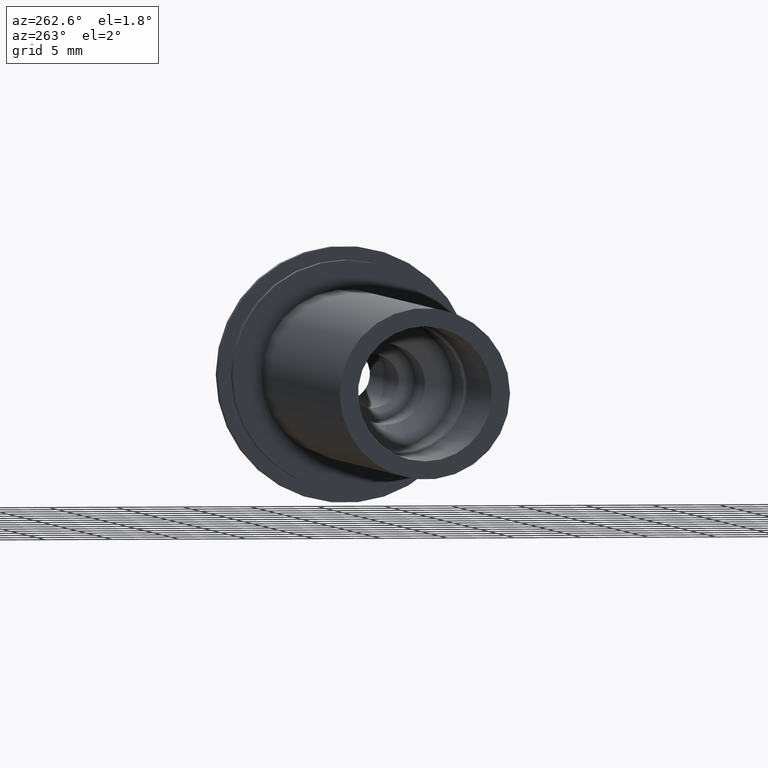
[diagram: clean part render]
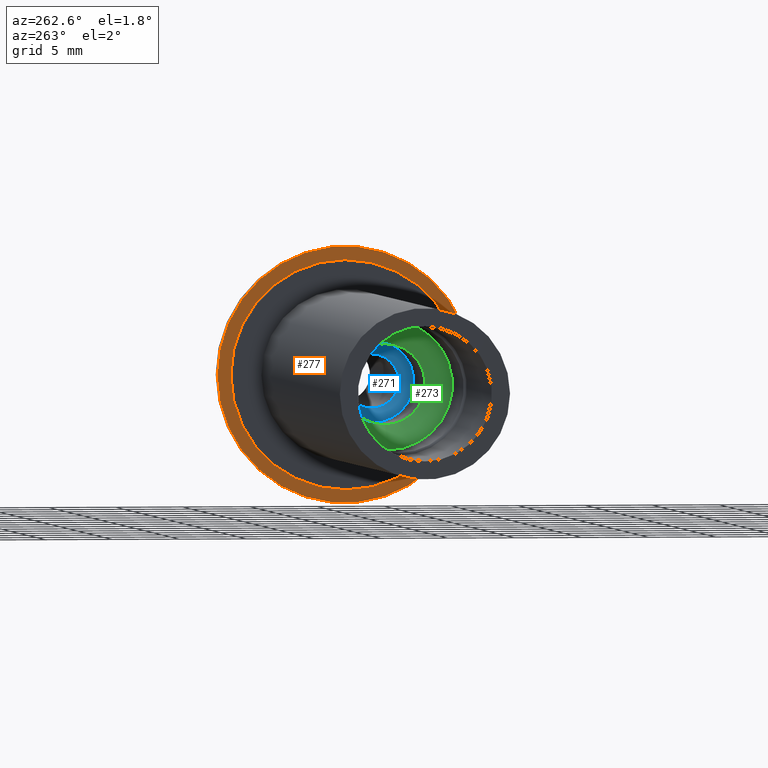
[diagram: same view with three faces highlighted in distinct colors, each labeled with its STEP entity id]
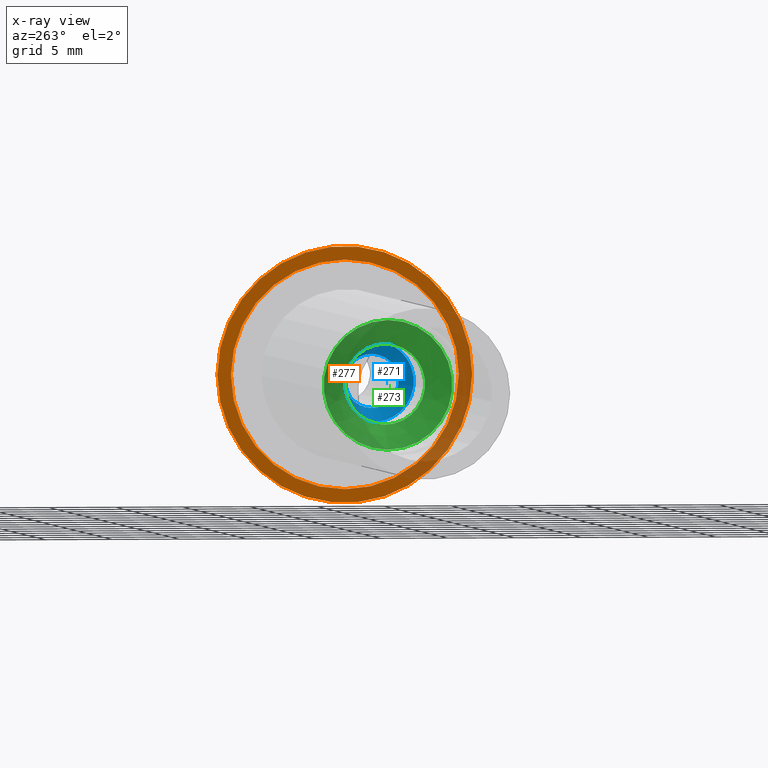
[diagram: x-ray of the same camera — body ghosted, the three highlighted faces saturated]
A machine part, auxiliary view with three faces highlighted in distinct colors.
The next image is the same camera in x-ray (body ghosted, the three faces saturated) — at least one of them is partly hidden behind the body in this view.
Their STEP definitions:

[orange] entity #277 — the highlighted planar face has unit normal (-1, 0, 0).
#91=FACE_BOUND('',#124,.T.);
#95=PLANE('',#323);
#109=FACE_OUTER_BOUND('',#123,.T.);
#123=EDGE_LOOP('',(#243));
#124=EDGE_LOOP('',(#244));
#163=CIRCLE('',#324,9.5);
#164=CIRCLE('',#325,8.5);
#182=VERTEX_POINT('',#491);
#183=VERTEX_POINT('',#493);
#204=EDGE_CURVE('',#182,#182,#163,.T.);
#205=EDGE_CURVE('',#183,#183,#164,.T.);
#243=ORIENTED_EDGE('',*,*,#204,.F.);
#244=ORIENTED_EDGE('',*,*,#205,.T.);
#277=ADVANCED_FACE('',(#109,#91),#95,.T.);
#323=AXIS2_PLACEMENT_3D('',#490,#394,#395);
#324=AXIS2_PLACEMENT_3D('',#492,#396,#397);
#325=AXIS2_PLACEMENT_3D('',#494,#398,#399);
#394=DIRECTION('center_axis',(-1.,0.,0.));
#395=DIRECTION('ref_axis',(0.,0.,1.));
#396=DIRECTION('center_axis',(1.,0.,0.));
#397=DIRECTION('ref_axis',(0.,0.,-1.));
#398=DIRECTION('center_axis',(1.,0.,0.));
#399=DIRECTION('ref_axis',(0.,0.,-1.));
#490=CARTESIAN_POINT('Origin',(-0.999999999999994,9.5,0.));
#491=CARTESIAN_POINT('',(-0.999999999999994,-9.5,-1.16341445918999E-15));
#492=CARTESIAN_POINT('Origin',(-0.999999999999994,0.,0.));
#493=CARTESIAN_POINT('',(-0.999999999999994,-8.5,-1.04094977927525E-15));
#494=CARTESIAN_POINT('Origin',(-0.999999999999994,0.,0.));

[blue] entity #271 — the highlighted conical surface has half-angle 45 deg.
#99=CONICAL_SURFACE('',#311,1.5,0.785398163397448);
#103=FACE_OUTER_BOUND('',#117,.T.);
#117=EDGE_LOOP('',(#218,#219,#220,#221,#222));
#135=LINE('',#469,#145);
#145=VECTOR('',#368,1.5);
#155=CIRCLE('',#309,2.);
#156=CIRCLE('',#310,2.);
#157=CIRCLE('',#312,3.);
#174=VERTEX_POINT('',#461);
#175=VERTEX_POINT('',#463);
#176=VERTEX_POINT('',#467);
#190=EDGE_CURVE('',#175,#174,#155,.T.);
#191=EDGE_CURVE('',#174,#175,#156,.T.);
#192=EDGE_CURVE('',#176,#176,#157,.T.);
#193=EDGE_CURVE('',#176,#175,#135,.T.);
#218=ORIENTED_EDGE('',*,*,#192,.T.);
#219=ORIENTED_EDGE('',*,*,#193,.T.);
#220=ORIENTED_EDGE('',*,*,#190,.T.);
#221=ORIENTED_EDGE('',*,*,#191,.T.);
#222=ORIENTED_EDGE('',*,*,#193,.F.);
#271=ADVANCED_FACE('',(#103),#99,.F.);
#309=AXIS2_PLACEMENT_3D('',#464,#360,#361);
#310=AXIS2_PLACEMENT_3D('',#465,#362,#363);
#311=AXIS2_PLACEMENT_3D('',#466,#364,#365);
#312=AXIS2_PLACEMENT_3D('',#468,#366,#367);
#360=DIRECTION('center_axis',(1.,0.,0.));
#361=DIRECTION('ref_axis',(0.,0.,-1.));
#362=DIRECTION('center_axis',(1.,0.,0.));
#363=DIRECTION('ref_axis',(0.,0.,-1.));
#364=DIRECTION('center_axis',(-1.,0.,0.));
#365=DIRECTION('ref_axis',(0.,0.,1.));
#366=DIRECTION('center_axis',(-1.,0.,0.));
#367=DIRECTION('ref_axis',(0.,0.,1.));
#368=DIRECTION('',(0.707106781186548,8.65956056235493E-17,0.707106781186547));
#461=CARTESIAN_POINT('',(-16.5,-2.44929359829471E-16,2.));
#463=CARTESIAN_POINT('',(-16.5,-2.44929359829471E-16,-2.));
#464=CARTESIAN_POINT('Origin',(-16.5,0.,0.));
#465=CARTESIAN_POINT('Origin',(-16.5,0.,0.));
#466=CARTESIAN_POINT('Origin',(-16.,0.,0.));
#467=CARTESIAN_POINT('',(-17.5,-3.67394039744206E-16,-3.));
#468=CARTESIAN_POINT('Origin',(-17.5,0.,0.));
#469=CARTESIAN_POINT('',(-16.,-1.83697019872103E-16,-1.5));

[green] entity #273 — the highlighted conical surface has half-angle 45 deg.
#100=CONICAL_SURFACE('',#315,2.4,0.785398163397448);
#105=FACE_OUTER_BOUND('',#119,.T.);
#119=EDGE_LOOP('',(#227,#228,#229,#230));
#137=LINE('',#477,#147);
#147=VECTOR('',#378,2.4);
#158=CIRCLE('',#314,3.);
#159=CIRCLE('',#316,4.8);
#177=VERTEX_POINT('',#471);
#178=VERTEX_POINT('',#475);
#194=EDGE_CURVE('',#177,#177,#158,.T.);
#196=EDGE_CURVE('',#178,#178,#159,.T.);
#197=EDGE_CURVE('',#178,#177,#137,.T.);
#227=ORIENTED_EDGE('',*,*,#196,.T.);
#228=ORIENTED_EDGE('',*,*,#197,.T.);
#229=ORIENTED_EDGE('',*,*,#194,.T.);
#230=ORIENTED_EDGE('',*,*,#197,.F.);
#273=ADVANCED_FACE('',(#105),#100,.F.);
#314=AXIS2_PLACEMENT_3D('',#472,#371,#372);
#315=AXIS2_PLACEMENT_3D('',#474,#374,#375);
#316=AXIS2_PLACEMENT_3D('',#476,#376,#377);
#371=DIRECTION('center_axis',(1.,0.,0.));
#372=DIRECTION('ref_axis',(0.,0.,1.));
#374=DIRECTION('center_axis',(-1.,0.,0.));
#375=DIRECTION('ref_axis',(0.,0.,1.));
#376=DIRECTION('center_axis',(-1.,0.,0.));
#377=DIRECTION('ref_axis',(0.,0.,1.));
#378=DIRECTION('',(0.707106781186548,8.65956056235493E-17,0.707106781186547));
#471=CARTESIAN_POINT('',(-24.,3.67394039744206E-16,-3.));
#472=CARTESIAN_POINT('Origin',(-24.,0.,0.));
#474=CARTESIAN_POINT('Origin',(-23.4,0.,0.));
#475=CARTESIAN_POINT('',(-25.8,-5.8783046359073E-16,-4.8));
#476=CARTESIAN_POINT('Origin',(-25.8,0.,0.));
#477=CARTESIAN_POINT('',(-23.4,-2.93915231795365E-16,-2.4));